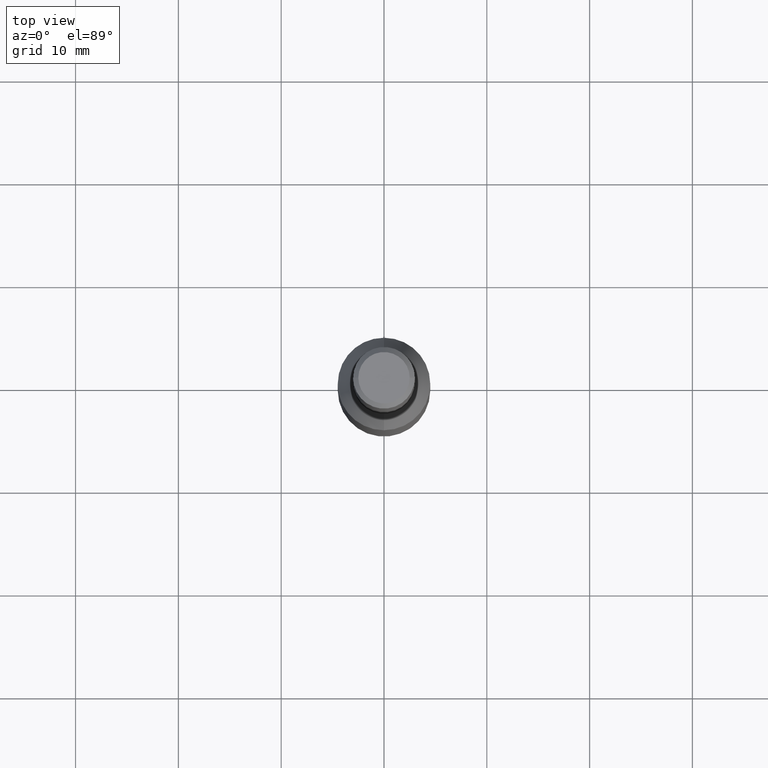
[diagram: clean part render]
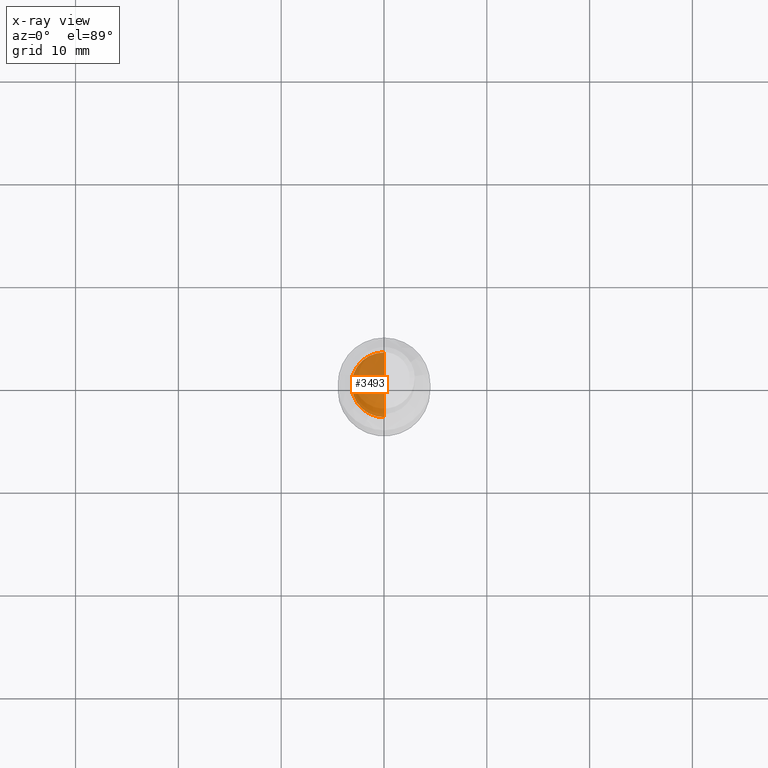
[diagram: x-ray — body ghosted, one internal face saturated and labeled with its STEP entity id]
A machine part, top view, then the same camera in x-ray: the body is ghosted and one INTERNAL B-rep face — a face not visible from any outside direction — is saturated and labeled: STEP entity #3493.
In plain terms, the highlighted conical surface has half-angle 59 deg.
Its self-contained STEP definition (entity closure, byte-faithful):
#99 = EDGE_CURVE ( 'NONE', #7428, #12552, #6583, .T. ) ;
#523 = CONICAL_SURFACE ( 'NONE', #4233, 3.149999999999996400, 1.029744258676650800 ) ;
#775 = ORIENTED_EDGE ( 'NONE', *, *, #4789, .F. ) ;
#1034 = CARTESIAN_POINT ( 'NONE',  ( 0.0000000000000000000, 3.947256073269318100E-017, 31.89271094993682700 ) ) ;
#1579 = DIRECTION ( 'NONE',  ( 0.0000000000000000000, 0.8571673007021104500, -0.5150380749100574900 ) ) ;
#1877 = DIRECTION ( 'NONE',  ( 0.0000000000000000000, -1.237667152054108000E-018, -1.000000000000000000 ) ) ;
#3118 = DIRECTION ( 'NONE',  ( 0.0000000000000000000, -1.000000000000000000, 0.0000000000000000000 ) ) ;
#3493 = ADVANCED_FACE ( 'NONE', ( #7468 ), #523, .F. ) ;
#3630 = LINE ( 'NONE', #8564, #6113 ) ;
#3690 = AXIS2_PLACEMENT_3D ( 'NONE', #5158, #4104, #3118 ) ;
#4104 = DIRECTION ( 'NONE',  ( -0.0000000000000000000, 1.237667152054108000E-018, 1.000000000000000000 ) ) ;
#4233 = AXIS2_PLACEMENT_3D ( 'NONE', #5020, #1877, #7268 ) ;
#4789 = EDGE_CURVE ( 'NONE', #12552, #8869, #12572, .T. ) ;
#4911 = CARTESIAN_POINT ( 'NONE',  ( 0.0000000000000000000, -3.149999999999996400, 30.00000000000000000 ) ) ;
#5020 = CARTESIAN_POINT ( 'NONE',  ( 0.0000000000000000000, 3.713001456162323700E-017, 30.00000000000000000 ) ) ;
#5158 = CARTESIAN_POINT ( 'NONE',  ( 0.0000000000000000000, 3.713001456162323700E-017, 30.00000000000000000 ) ) ;
#6113 = VECTOR ( 'NONE', #6491, 999.9999999999998900 ) ;
#6270 = EDGE_CURVE ( 'NONE', #7428, #8869, #3630, .T. ) ;
#6491 = DIRECTION ( 'NONE',  ( 1.049727191138616400E-016, -0.8571673007021104500, -0.5150380749100574900 ) ) ;
#6572 = CARTESIAN_POINT ( 'NONE',  ( 3.857637417314159700E-016, 3.149999999999996400, 30.00000000000000000 ) ) ;
#6583 = LINE ( 'NONE', #11262, #9544 ) ;
#7268 = DIRECTION ( 'NONE',  ( 0.0000000000000000000, 1.000000000000000000, 0.0000000000000000000 ) ) ;
#7428 = VERTEX_POINT ( 'NONE', #1034 ) ;
#7468 = FACE_OUTER_BOUND ( 'NONE', #12451, .T. ) ;
#8564 = CARTESIAN_POINT ( 'NONE',  ( 3.857637417314158300E-016, -3.149999999999996400, 30.00000000000000000 ) ) ;
#8711 = ORIENTED_EDGE ( 'NONE', *, *, #6270, .T. ) ;
#8869 = VERTEX_POINT ( 'NONE', #4911 ) ;
#9544 = VECTOR ( 'NONE', #1579, 999.9999999999998900 ) ;
#9906 = ORIENTED_EDGE ( 'NONE', *, *, #99, .F. ) ;
#11262 = CARTESIAN_POINT ( 'NONE',  ( 0.0000000000000000000, 3.149999999999996400, 30.00000000000000000 ) ) ;
#12451 = EDGE_LOOP ( 'NONE', ( #9906, #8711, #775 ) ) ;
#12552 = VERTEX_POINT ( 'NONE', #6572 ) ;
#12572 = CIRCLE ( 'NONE', #3690, 3.149999999999996400 ) ;